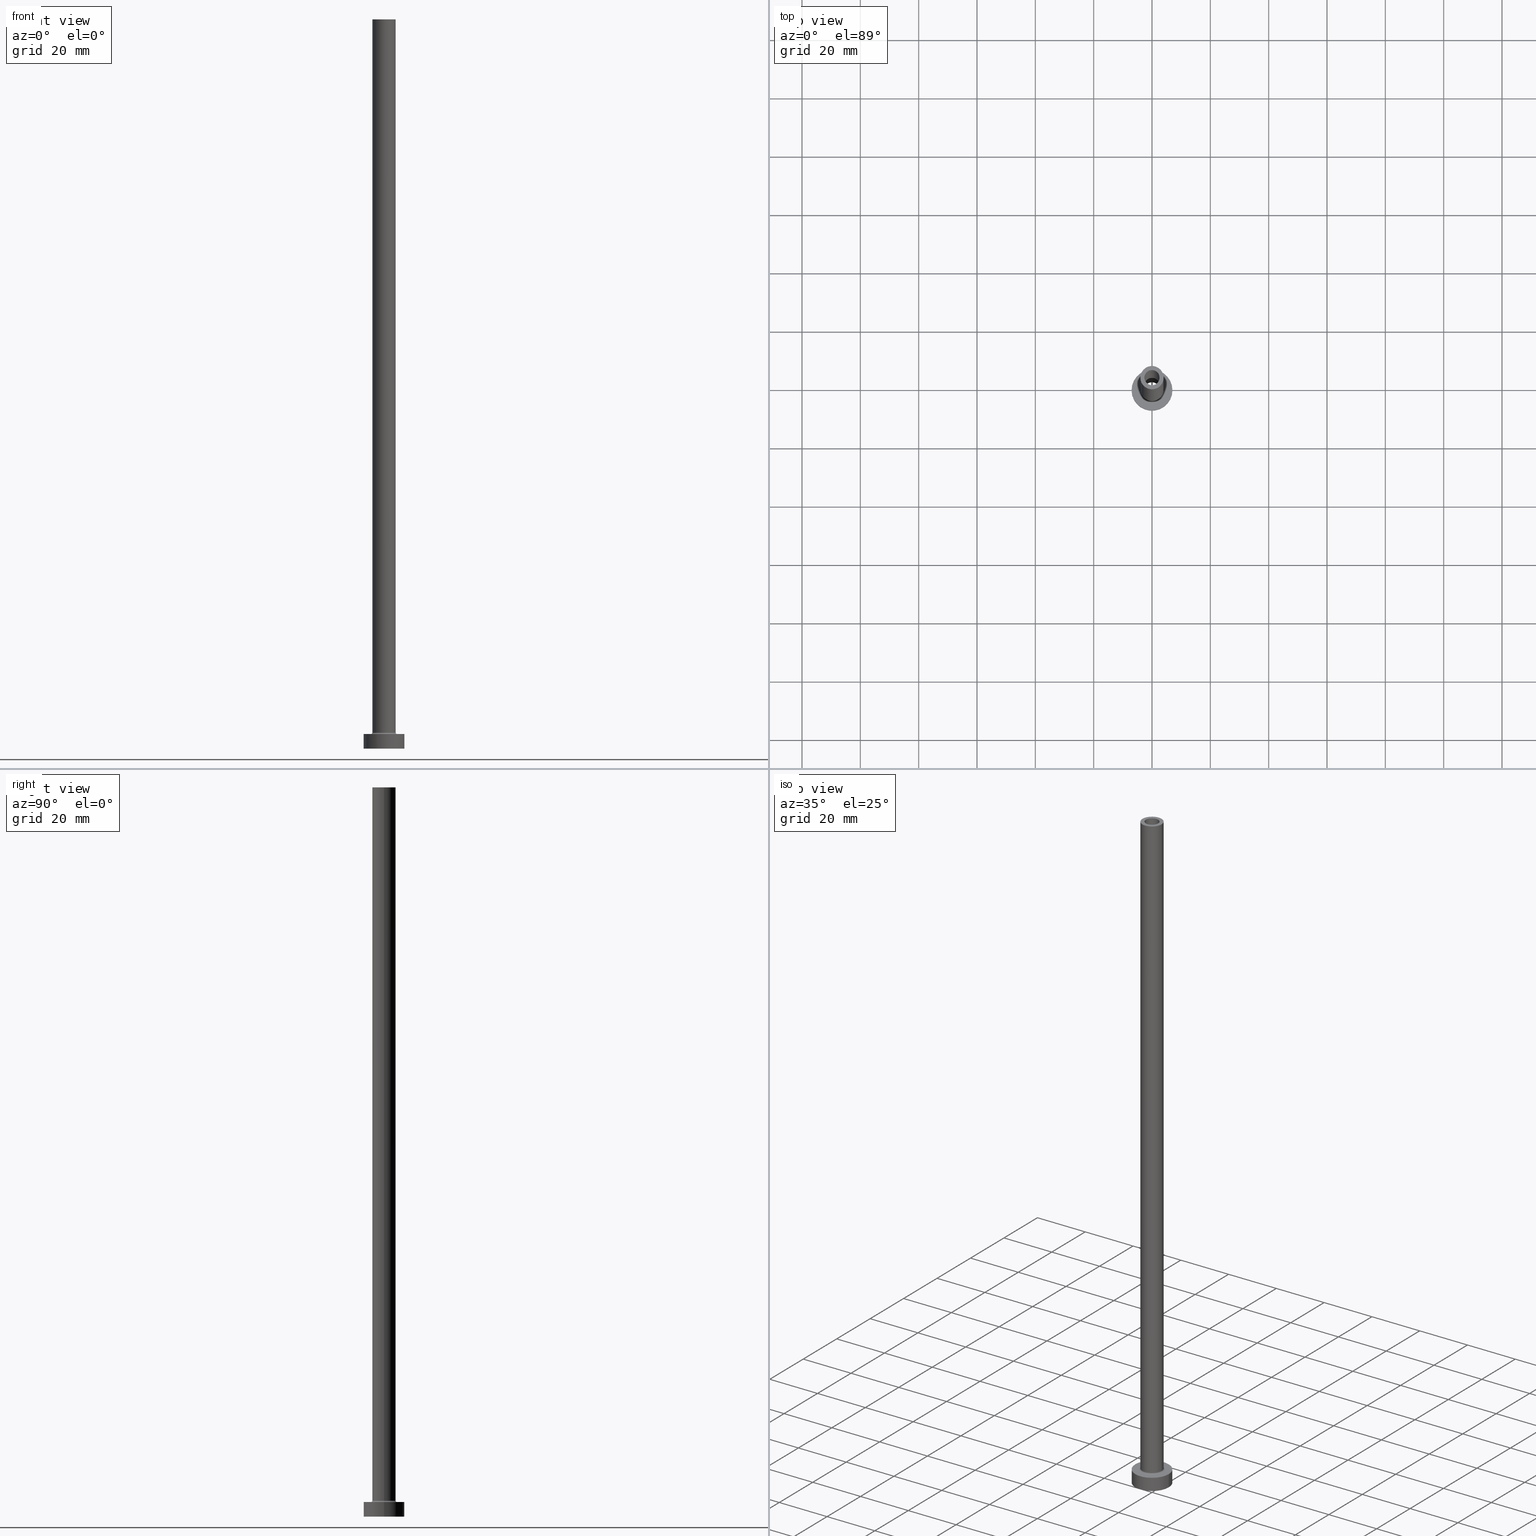
[diagram: canonical four-view strip — front | top / right | iso, engineering-drawing reading convention]
A machine part, canonical four-view strip (front | top / right | iso — engineering-drawing reading convention). The complete STEP part file that produces these views, byte-faithful:
ISO-10303-21;
HEADER;
FILE_DESCRIPTION (( 'STEP AP203' ),
    '1' );
FILE_NAME ('cbac.STEP',
    '2023-02-13T16:30:10',
    ( '' ),
    ( '' ),
    'SwSTEP 2.0',
    'SolidWorks 2019',
    '' );
FILE_SCHEMA (( 'CONFIG_CONTROL_DESIGN' ));
ENDSEC;

DATA;
#1 = VERTEX_POINT ( 'NONE', #78 ) ;
#2 = ORIENTED_EDGE ( 'NONE', *, *, #99, .F. ) ;
#3 = DIRECTION ( 'NONE',  ( -1.000000000000000000, 1.224646799147351482E-16, 0.000000000000000000 ) ) ;
#4 = DIRECTION ( 'NONE',  ( 1.000000000000000000, 0.000000000000000000, -0.000000000000000000 ) ) ;
#5 = DIRECTION ( 'NONE',  ( -1.000000000000000000, 0.000000000000000000, 0.000000000000000000 ) ) ;
#6 = VECTOR ( 'NONE', #360, 1000.000000000000000 ) ;
#7 = AXIS2_PLACEMENT_3D ( 'NONE', #383, #236, #449 ) ;
#8 = DIRECTION ( 'NONE',  ( 1.000000000000000000, 0.000000000000000000, 0.000000000000000000 ) ) ;
#9 = DIRECTION ( 'NONE',  ( -0.000000000000000000, -0.000000000000000000, -1.000000000000000000 ) ) ;
#10 = CARTESIAN_POINT ( 'NONE',  ( 7.000000000000000000, 8.572527594031473190E-16, 5.000000000000000000 ) ) ;
#11 = ADVANCED_FACE ( 'NONE', ( #355 ), #41, .T. ) ;
#12 = DIRECTION ( 'NONE',  ( -0.000000000000000000, -0.000000000000000000, -1.000000000000000000 ) ) ;
#13 = AXIS2_PLACEMENT_3D ( 'NONE', #115, #320, #5 ) ;
#14 = CARTESIAN_POINT ( 'NONE',  ( 4.000000000000000000, 4.898587196589412829E-16, 5.500000000000005329 ) ) ;
#15 = CARTESIAN_POINT ( 'NONE',  ( 0.000000000000000000, 0.000000000000000000, 250.0000000000000000 ) ) ;
#16 = CIRCLE ( 'NONE', #247, 4.500000000000000888 ) ;
#17 = DIRECTION ( 'NONE',  ( -1.000000000000000000, 0.000000000000000000, 0.000000000000000000 ) ) ;
#18 = FACE_OUTER_BOUND ( 'NONE', #430, .T. ) ;
#19 = COORDINATED_UNIVERSAL_TIME_OFFSET ( 1, 0, .AHEAD. ) ;
#20 = DIRECTION ( 'NONE',  ( 1.000000000000000000, 0.000000000000000000, 0.000000000000000000 ) ) ;
#21 = ORIENTED_EDGE ( 'NONE', *, *, #67, .F. ) ;
#22 = APPROVAL_ROLE ( '' ) ;
#23 = FACE_BOUND ( 'NONE', #277, .T. ) ;
#24 = ORIENTED_EDGE ( 'NONE', *, *, #354, .F. ) ;
#25 = VECTOR ( 'NONE', #9, 1000.000000000000000 ) ;
#26 = SHAPE_DEFINITION_REPRESENTATION ( #336, #378 ) ;
#27 = LOCAL_TIME ( 17, 30, 10.00000000000000000, #333 ) ;
#28 = DIRECTION ( 'NONE',  ( 1.000000000000000000, 0.000000000000000000, -0.000000000000000000 ) ) ;
#29 = ORIENTED_EDGE ( 'NONE', *, *, #134, .F. ) ;
#30 = SECURITY_CLASSIFICATION_LEVEL ( 'unclassified' ) ;
#31 = EDGE_CURVE ( 'NONE', #72, #339, #196, .T. ) ;
#32 = ORIENTED_EDGE ( 'NONE', *, *, #316, .F. ) ;
#33 = AXIS2_PLACEMENT_3D ( 'NONE', #437, #82, #3 ) ;
#34 = MECHANICAL_CONTEXT ( 'NONE', #344, 'mechanical' ) ;
#35 = CIRCLE ( 'NONE', #321, 4.500000000000000888 ) ;
#36 = ORIENTED_EDGE ( 'NONE', *, *, #193, .T. ) ;
#37 = EDGE_CURVE ( 'NONE', #128, #335, #90, .T. ) ;
#38 = EDGE_LOOP ( 'NONE', ( #102, #390, #167, #192 ) ) ;
#39 = ORIENTED_EDGE ( 'NONE', *, *, #316, .T. ) ;
#40 = AXIS2_PLACEMENT_3D ( 'NONE', #326, #436, #156 ) ;
#41 = CYLINDRICAL_SURFACE ( 'NONE', #459, 7.000000000000000000 ) ;
#42 = FACE_OUTER_BOUND ( 'NONE', #141, .T. ) ;
#43 = CC_DESIGN_DATE_AND_TIME_ASSIGNMENT ( #345, #337, ( #284 ) ) ;
#44 = CARTESIAN_POINT ( 'NONE',  ( 4.000000000000000000, 4.898587196589412829E-16, 250.0000000000000000 ) ) ;
#45 = CARTESIAN_POINT ( 'NONE',  ( 0.000000000000000000, 0.000000000000000000, 250.0000000000000000 ) ) ;
#46 = CARTESIAN_POINT ( 'NONE',  ( 4.500000000000000888, 0.000000000000000000, 5.000000000000002665 ) ) ;
#47 = AXIS2_PLACEMENT_3D ( 'NONE', #191, #163, #452 ) ;
#48 = ADVANCED_FACE ( 'NONE', ( #42 ), #327, .F. ) ;
#49 = DIRECTION ( 'NONE',  ( 0.000000000000000000, 0.000000000000000000, 1.000000000000000000 ) ) ;
#50 = DIRECTION ( 'NONE',  ( 1.000000000000000000, 0.000000000000000000, 0.000000000000000000 ) ) ;
#51 = CARTESIAN_POINT ( 'NONE',  ( 0.000000000000000000, 0.000000000000000000, 250.0000000000000000 ) ) ;
#52 = LINE ( 'NONE', #123, #25 ) ;
#53 = PLANE ( 'NONE',  #155 ) ;
#54 = CARTESIAN_POINT ( 'NONE',  ( 7.000000000000000000, 8.572527594031473190E-16, 0.000000000000000000 ) ) ;
#55 = APPROVAL ( #190, 'NEUR�EN�' ) ;
#56 = CIRCLE ( 'NONE', #271, 2.750000000000000000 ) ;
#57 = DIRECTION ( 'NONE',  ( 0.000000000000000000, 0.000000000000000000, -1.000000000000000000 ) ) ;
#58 = DIRECTION ( 'NONE',  ( 0.000000000000000000, 0.000000000000000000, 1.000000000000000000 ) ) ;
#59 = VERTEX_POINT ( 'NONE', #146 ) ;
#60 = PERSON_AND_ORGANIZATION ( #349, #442 ) ;
#61 = DIRECTION ( 'NONE',  ( -0.000000000000000000, -0.000000000000000000, -1.000000000000000000 ) ) ;
#62 = EDGE_LOOP ( 'NONE', ( #75, #238, #39, #204 ) ) ;
#63 = AXIS2_PLACEMENT_3D ( 'NONE', #325, #153, #220 ) ;
#64 = DATE_AND_TIME ( #375, #88 ) ;
#65 = DIRECTION ( 'NONE',  ( 1.000000000000000000, 0.000000000000000000, 0.000000000000000000 ) ) ;
#66 = DATE_AND_TIME ( #194, #189 ) ;
#67 = EDGE_CURVE ( 'NONE', #1, #110, #112, .T. ) ;
#68 = CC_DESIGN_APPROVAL ( #322, ( #369 ) ) ;
#69 = ORIENTED_EDGE ( 'NONE', *, *, #176, .T. ) ;
#70 = CALENDAR_DATE ( 2023, 13, 2 ) ;
#71 = EDGE_LOOP ( 'NONE', ( #106, #174 ) ) ;
#72 = VERTEX_POINT ( 'NONE', #408 ) ;
#73 = CIRCLE ( 'NONE', #395, 4.000000000000000000 ) ;
#74 = CIRCLE ( 'NONE', #145, 2.600000000000000089 ) ;
#75 = ORIENTED_EDGE ( 'NONE', *, *, #37, .F. ) ;
#76 = UNCERTAINTY_MEASURE_WITH_UNIT (LENGTH_MEASURE( 1.000000000000000082E-05 ), #328, 'distance_accuracy_value', 'NONE');
#77 = ORIENTED_EDGE ( 'NONE', *, *, #143, .T. ) ;
#78 = CARTESIAN_POINT ( 'NONE',  ( 2.600000000000000089, 3.184081677783117698E-16, 250.0000000000000000 ) ) ;
#79 = EDGE_CURVE ( 'NONE', #335, #161, #312, .T. ) ;
#80 = TOROIDAL_SURFACE ( 'NONE', #47, 4.500000000000000888, 0.5000000000000000000 ) ;
#81 = EDGE_LOOP ( 'NONE', ( #209, #138 ) ) ;
#82 = DIRECTION ( 'NONE',  ( 1.224646799147353207E-16, 1.000000000000000000, -0.000000000000000000 ) ) ;
#83 = CARTESIAN_POINT ( 'NONE',  ( 2.750000000000000000, 3.367778697655221012E-16, 205.0000000000000284 ) ) ;
#84 = CARTESIAN_POINT ( 'NONE',  ( 0.000000000000000000, 0.000000000000000000, 0.000000000000000000 ) ) ;
#85 = EDGE_CURVE ( 'NONE', #128, #139, #98, .T. ) ;
#86 = CYLINDRICAL_SURFACE ( 'NONE', #403, 4.000000000000000000 ) ;
#87 = DIRECTION ( 'NONE',  ( -1.000000000000000000, 0.000000000000000000, 0.000000000000000000 ) ) ;
#88 = LOCAL_TIME ( 17, 30, 10.00000000000000000, #19 ) ;
#89 = CYLINDRICAL_SURFACE ( 'NONE', #235, 2.600000000000000089 ) ;
#90 = LINE ( 'NONE', #44, #409 ) ;
#91 = DIRECTION ( 'NONE',  ( 1.000000000000000000, 0.000000000000000000, 0.000000000000000000 ) ) ;
#92 = CARTESIAN_POINT ( 'NONE',  ( 0.000000000000000000, 0.000000000000000000, 5.500000000000005329 ) ) ;
#93 = LOCAL_TIME ( 17, 30, 10.00000000000000000, #305 ) ;
#94 = PERSON_AND_ORGANIZATION ( #349, #442 ) ;
#95 = DIRECTION ( 'NONE',  ( -0.000000000000000000, -0.000000000000000000, -1.000000000000000000 ) ) ;
#96 = PERSON_AND_ORGANIZATION ( #349, #442 ) ;
#97 = FACE_OUTER_BOUND ( 'NONE', #71, .T. ) ;
#98 = CIRCLE ( 'NONE', #353, 4.000000000000000000 ) ;
#99 = EDGE_CURVE ( 'NONE', #394, #233, #291, .T. ) ;
#100 = PERSON_AND_ORGANIZATION_ROLE ( 'creator' ) ;
#101 = DIRECTION ( 'NONE',  ( 1.000000000000000000, 0.000000000000000000, 0.000000000000000000 ) ) ;
#102 = ORIENTED_EDGE ( 'NONE', *, *, #168, .F. ) ;
#103 = PERSON_AND_ORGANIZATION_ROLE ( 'creator' ) ;
#104 = APPROVAL_PERSON_ORGANIZATION ( #129, #55, #22 ) ;
#105 = EDGE_CURVE ( 'NONE', #453, #59, #269, .T. ) ;
#106 = ORIENTED_EDGE ( 'NONE', *, *, #237, .T. ) ;
#107 = ORIENTED_EDGE ( 'NONE', *, *, #358, .T. ) ;
#108 = APPROVAL_PERSON_ORGANIZATION ( #417, #322, #451 ) ;
#109 = EDGE_LOOP ( 'NONE', ( #356, #205, #131, #203 ) ) ;
#110 = VERTEX_POINT ( 'NONE', #148 ) ;
#111 = ADVANCED_FACE ( 'NONE', ( #182, #121 ), #185, .F. ) ;
#112 = CIRCLE ( 'NONE', #63, 2.600000000000000089 ) ;
#113 = ORIENTED_EDGE ( 'NONE', *, *, #255, .T. ) ;
#114 = CIRCLE ( 'NONE', #314, 4.000000000000000000 ) ;
#115 = CARTESIAN_POINT ( 'NONE',  ( 0.000000000000000000, 0.000000000000000000, 250.0000000000000000 ) ) ;
#116 = CC_DESIGN_APPROVAL ( #55, ( #456 ) ) ;
#117 = LINE ( 'NONE', #400, #289 ) ;
#118 = ADVANCED_FACE ( 'NONE', ( #280 ), #318, .F. ) ;
#119 = DIRECTION ( 'NONE',  ( 1.000000000000000000, 0.000000000000000000, 0.000000000000000000 ) ) ;
#120 = DIRECTION ( 'NONE',  ( 0.000000000000000000, 0.000000000000000000, 1.000000000000000000 ) ) ;
#121 = FACE_OUTER_BOUND ( 'NONE', #348, .T. ) ;
#122 = DIRECTION ( 'NONE',  ( 0.000000000000000000, 0.000000000000000000, -1.000000000000000000 ) ) ;
#123 = CARTESIAN_POINT ( 'NONE',  ( 7.000000000000000000, 8.572527594031473190E-16, 5.000000000000000000 ) ) ;
#124 = FACE_OUTER_BOUND ( 'NONE', #350, .T. ) ;
#125 = CARTESIAN_POINT ( 'NONE',  ( 0.000000000000000000, 0.000000000000000000, 5.000000000000000000 ) ) ;
#126 = ADVANCED_FACE ( 'NONE', ( #222 ), #432, .F. ) ;
#127 = CARTESIAN_POINT ( 'NONE',  ( 2.750000000000000000, 3.367778697655221012E-16, 0.000000000000000000 ) ) ;
#128 = VERTEX_POINT ( 'NONE', #397 ) ;
#129 = PERSON_AND_ORGANIZATION ( #349, #442 ) ;
#130 = CARTESIAN_POINT ( 'NONE',  ( -2.750000000000000000, 0.000000000000000000, 0.000000000000000000 ) ) ;
#131 = ORIENTED_EDGE ( 'NONE', *, *, #206, .F. ) ;
#132 = LOCAL_TIME ( 17, 30, 10.00000000000000000, #304 ) ;
#133 = DIRECTION ( 'NONE',  ( 1.000000000000000000, 0.000000000000000000, -0.000000000000000000 ) ) ;
#134 = EDGE_CURVE ( 'NONE', #339, #161, #16, .T. ) ;
#135 = CARTESIAN_POINT ( 'NONE',  ( 0.000000000000000000, 0.000000000000000000, 5.000000000000000000 ) ) ;
#136 = EDGE_LOOP ( 'NONE', ( #346, #278, #211, #24 ) ) ;
#137 = DIRECTION ( 'NONE',  ( -0.000000000000000000, -0.000000000000000000, -1.000000000000000000 ) ) ;
#138 = ORIENTED_EDGE ( 'NONE', *, *, #134, .T. ) ;
#139 = VERTEX_POINT ( 'NONE', #285 ) ;
#140 = VERTEX_POINT ( 'NONE', #259 ) ;
#141 = EDGE_LOOP ( 'NONE', ( #373, #275, #423, #428 ) ) ;
#142 = DIRECTION ( 'NONE',  ( -0.000000000000000000, -0.000000000000000000, -1.000000000000000000 ) ) ;
#143 = EDGE_CURVE ( 'NONE', #273, #229, #214, .T. ) ;
#144 = DIRECTION ( 'NONE',  ( 1.000000000000000000, 0.000000000000000000, 0.000000000000000000 ) ) ;
#145 = AXIS2_PLACEMENT_3D ( 'NONE', #251, #288, #398 ) ;
#146 = CARTESIAN_POINT ( 'NONE',  ( -7.000000000000000000, 0.000000000000000000, 5.000000000000000000 ) ) ;
#147 = CYLINDRICAL_SURFACE ( 'NONE', #388, 2.750000000000000000 ) ;
#148 = CARTESIAN_POINT ( 'NONE',  ( -2.600000000000000089, 0.000000000000000000, 250.0000000000000000 ) ) ;
#149 = FACE_OUTER_BOUND ( 'NONE', #136, .T. ) ;
#150 = VECTOR ( 'NONE', #357, 1000.000000000000000 ) ;
#151 = CARTESIAN_POINT ( 'NONE',  ( 4.500000000000000888, 0.000000000000000000, 5.500000000000005329 ) ) ;
#152 = FACE_OUTER_BOUND ( 'NONE', #382, .T. ) ;
#153 = DIRECTION ( 'NONE',  ( 0.000000000000000000, 0.000000000000000000, 1.000000000000000000 ) ) ;
#154 = EDGE_CURVE ( 'NONE', #59, #384, #287, .T. ) ;
#155 = AXIS2_PLACEMENT_3D ( 'NONE', #364, #120, #4 ) ;
#156 = DIRECTION ( 'NONE',  ( 1.000000000000000000, 0.000000000000000000, 0.000000000000000000 ) ) ;
#157 = CARTESIAN_POINT ( 'NONE',  ( -4.000000000000000000, 0.000000000000000000, 250.0000000000000000 ) ) ;
#158 = DIRECTION ( 'NONE',  ( 0.000000000000000000, 0.000000000000000000, 1.000000000000000000 ) ) ;
#159 = ORIENTED_EDGE ( 'NONE', *, *, #303, .T. ) ;
#160 = FACE_OUTER_BOUND ( 'NONE', #426, .T. ) ;
#161 = VERTEX_POINT ( 'NONE', #46 ) ;
#162 = VECTOR ( 'NONE', #439, 1000.000000000000000 ) ;
#163 = DIRECTION ( 'NONE',  ( 0.000000000000000000, 0.000000000000000000, 1.000000000000000000 ) ) ;
#164 = PERSON_AND_ORGANIZATION_ROLE ( 'classification_officer' ) ;
#165 = ORIENTED_EDGE ( 'NONE', *, *, #391, .F. ) ;
#166 = APPROVAL_DATE_TIME ( #202, #322 ) ;
#167 = ORIENTED_EDGE ( 'NONE', *, *, #154, .T. ) ;
#168 = EDGE_CURVE ( 'NONE', #453, #306, #52, .T. ) ;
#169 = VECTOR ( 'NONE', #215, 1000.000000000000000 ) ;
#170 =( GEOMETRIC_REPRESENTATION_CONTEXT ( 3 ) GLOBAL_UNCERTAINTY_ASSIGNED_CONTEXT ( ( #76 ) ) GLOBAL_UNIT_ASSIGNED_CONTEXT ( ( #328, #186, #410 ) ) REPRESENTATION_CONTEXT ( 'NONE', 'WORKASPACE' ) );
#171 = ORIENTED_EDGE ( 'NONE', *, *, #341, .T. ) ;
#172 = ORIENTED_EDGE ( 'NONE', *, *, #105, .T. ) ;
#173 = EDGE_CURVE ( 'NONE', #394, #273, #307, .T. ) ;
#174 = ORIENTED_EDGE ( 'NONE', *, *, #85, .T. ) ;
#175 = CARTESIAN_POINT ( 'NONE',  ( 0.000000000000000000, 0.000000000000000000, 5.000000000000000000 ) ) ;
#176 = EDGE_CURVE ( 'NONE', #229, #233, #56, .T. ) ;
#177 = DIRECTION ( 'NONE',  ( 0.000000000000000000, 0.000000000000000000, 1.000000000000000000 ) ) ;
#178 = LINE ( 'NONE', #438, #290 ) ;
#179 = CIRCLE ( 'NONE', #40, 7.000000000000000000 ) ;
#180 = DIRECTION ( 'NONE',  ( 1.000000000000000000, 0.000000000000000000, 0.000000000000000000 ) ) ;
#181 = DIRECTION ( 'NONE',  ( 0.000000000000000000, 0.000000000000000000, -1.000000000000000000 ) ) ;
#182 = FACE_BOUND ( 'NONE', #241, .T. ) ;
#183 = CARTESIAN_POINT ( 'NONE',  ( 2.600000000000000089, 3.184081677783117698E-16, 205.0000000000000284 ) ) ;
#184 = EDGE_CURVE ( 'NONE', #72, #335, #73, .T. ) ;
#185 = PLANE ( 'NONE',  #261 ) ;
#186 =( NAMED_UNIT ( * ) PLANE_ANGLE_UNIT ( ) SI_UNIT ( $, .RADIAN. ) );
#187 = LINE ( 'NONE', #157, #169 ) ;
#188 = AXIS2_PLACEMENT_3D ( 'NONE', #302, #372, #101 ) ;
#189 = LOCAL_TIME ( 17, 30, 10.00000000000000000, #385 ) ;
#190 = APPROVAL_STATUS ( 'not_yet_approved' ) ;
#191 = CARTESIAN_POINT ( 'NONE',  ( 0.000000000000000000, 0.000000000000000000, 5.500000000000005329 ) ) ;
#192 = ORIENTED_EDGE ( 'NONE', *, *, #440, .T. ) ;
#193 = EDGE_CURVE ( 'NONE', #387, #140, #330, .T. ) ;
#194 = CALENDAR_DATE ( 2023, 13, 2 ) ;
#195 = CARTESIAN_POINT ( 'NONE',  ( 0.000000000000000000, 0.000000000000000000, 5.000000000000000000 ) ) ;
#196 = CIRCLE ( 'NONE', #33, 0.5000000000000004441 ) ;
#197 = DATE_TIME_ROLE ( 'classification_date' ) ;
#198 = FACE_OUTER_BOUND ( 'NONE', #244, .T. ) ;
#199 = CIRCLE ( 'NONE', #234, 2.750000000000000000 ) ;
#200 = APPROVAL_DATE_TIME ( #420, #55 ) ;
#201 = ORIENTED_EDGE ( 'NONE', *, *, #173, .F. ) ;
#202 = DATE_AND_TIME ( #70, #132 ) ;
#203 = ORIENTED_EDGE ( 'NONE', *, *, #79, .F. ) ;
#204 = ORIENTED_EDGE ( 'NONE', *, *, #184, .T. ) ;
#205 = ORIENTED_EDGE ( 'NONE', *, *, #31, .T. ) ;
#206 = EDGE_CURVE ( 'NONE', #161, #339, #35, .T. ) ;
#207 = ORIENTED_EDGE ( 'NONE', *, *, #440, .F. ) ;
#208 = PRODUCT ( 'cbac', 'cbac', '', ( #34 ) ) ;
#209 = ORIENTED_EDGE ( 'NONE', *, *, #206, .T. ) ;
#210 = APPROVAL ( #270, 'NEUR�EN�' ) ;
#211 = ORIENTED_EDGE ( 'NONE', *, *, #406, .F. ) ;
#212 = DIRECTION ( 'NONE',  ( 0.000000000000000000, -1.000000000000000000, 0.000000000000000000 ) ) ;
#213 = DIRECTION ( 'NONE',  ( -1.000000000000000000, 0.000000000000000000, 0.000000000000000000 ) ) ;
#214 = LINE ( 'NONE', #401, #6 ) ;
#215 = DIRECTION ( 'NONE',  ( -0.000000000000000000, -0.000000000000000000, -1.000000000000000000 ) ) ;
#216 = AXIS2_PLACEMENT_3D ( 'NONE', #262, #299, #133 ) ;
#217 = DIRECTION ( 'NONE',  ( 0.000000000000000000, 0.000000000000000000, -1.000000000000000000 ) ) ;
#218 = APPLICATION_CONTEXT ( 'configuration controlled 3d designs of mechanical parts and assemblies' ) ;
#219 = ADVANCED_FACE ( 'NONE', ( #18 ), #228, .T. ) ;
#220 = DIRECTION ( 'NONE',  ( 1.000000000000000000, 0.000000000000000000, 0.000000000000000000 ) ) ;
#221 = FACE_OUTER_BOUND ( 'NONE', #461, .T. ) ;
#222 = FACE_OUTER_BOUND ( 'NONE', #240, .T. ) ;
#223 = DIRECTION ( 'NONE',  ( -1.000000000000000000, 0.000000000000000000, 0.000000000000000000 ) ) ;
#224 = CARTESIAN_POINT ( 'NONE',  ( 0.000000000000000000, 0.000000000000000000, 250.0000000000000000 ) ) ;
#225 = CIRCLE ( 'NONE', #243, 2.750000000000000000 ) ;
#226 = ORIENTED_EDGE ( 'NONE', *, *, #168, .T. ) ;
#227 = PERSON_AND_ORGANIZATION ( #349, #442 ) ;
#228 = CYLINDRICAL_SURFACE ( 'NONE', #342, 7.000000000000000000 ) ;
#229 = VERTEX_POINT ( 'NONE', #130 ) ;
#230 = PERSON_AND_ORGANIZATION ( #349, #442 ) ;
#231 = DIRECTION ( 'NONE',  ( 0.000000000000000000, 0.000000000000000000, 1.000000000000000000 ) ) ;
#232 = DIRECTION ( 'NONE',  ( 1.000000000000000000, 0.000000000000000000, 0.000000000000000000 ) ) ;
#233 = VERTEX_POINT ( 'NONE', #127 ) ;
#234 = AXIS2_PLACEMENT_3D ( 'NONE', #268, #380, #366 ) ;
#235 = AXIS2_PLACEMENT_3D ( 'NONE', #51, #407, #17 ) ;
#236 = DIRECTION ( 'NONE',  ( 0.000000000000000000, 0.000000000000000000, 1.000000000000000000 ) ) ;
#237 = EDGE_CURVE ( 'NONE', #139, #128, #448, .T. ) ;
#238 = ORIENTED_EDGE ( 'NONE', *, *, #237, .F. ) ;
#239 = PERSON_AND_ORGANIZATION_ROLE ( 'design_owner' ) ;
#240 = EDGE_LOOP ( 'NONE', ( #159, #297, #107, #424 ) ) ;
#241 = EDGE_LOOP ( 'NONE', ( #246, #419 ) ) ;
#242 = ADVANCED_FACE ( 'NONE', ( #23, #160 ), #450, .F. ) ;
#243 = AXIS2_PLACEMENT_3D ( 'NONE', #260, #256, #319 ) ;
#244 = EDGE_LOOP ( 'NONE', ( #313, #311, #352, #29 ) ) ;
#245 = ORIENTED_EDGE ( 'NONE', *, *, #406, .T. ) ;
#246 = ORIENTED_EDGE ( 'NONE', *, *, #176, .F. ) ;
#247 = AXIS2_PLACEMENT_3D ( 'NONE', #329, #12, #119 ) ;
#248 = ADVANCED_FACE ( 'NONE', ( #445, #97 ), #331, .T. ) ;
#249 = CC_DESIGN_SECURITY_CLASSIFICATION ( #369, ( #456 ) ) ;
#250 = CARTESIAN_POINT ( 'NONE',  ( 2.750000000000000000, 3.367778697655221012E-16, 212.7781745930520287 ) ) ;
#251 = CARTESIAN_POINT ( 'NONE',  ( 0.000000000000000000, 0.000000000000000000, 250.0000000000000000 ) ) ;
#252 = DIRECTION ( 'NONE',  ( 0.000000000000000000, 0.000000000000000000, 1.000000000000000000 ) ) ;
#253 = DIRECTION ( 'NONE',  ( -1.000000000000000000, 0.000000000000000000, 0.000000000000000000 ) ) ;
#254 = CARTESIAN_POINT ( 'NONE',  ( 0.000000000000000000, 0.000000000000000000, 212.7781745930520287 ) ) ;
#255 = EDGE_CURVE ( 'NONE', #335, #72, #114, .T. ) ;
#256 = DIRECTION ( 'NONE',  ( -0.000000000000000000, -0.000000000000000000, -1.000000000000000000 ) ) ;
#257 = CARTESIAN_POINT ( 'NONE',  ( 0.000000000000000000, 0.000000000000000000, 205.0000000000000284 ) ) ;
#258 = DIRECTION ( 'NONE',  ( 0.000000000000000000, 0.000000000000000000, 1.000000000000000000 ) ) ;
#259 = CARTESIAN_POINT ( 'NONE',  ( -2.600000000000000089, 0.000000000000000000, 205.0000000000000284 ) ) ;
#260 = CARTESIAN_POINT ( 'NONE',  ( 0.000000000000000000, 0.000000000000000000, 0.000000000000000000 ) ) ;
#261 = AXIS2_PLACEMENT_3D ( 'NONE', #84, #252, #399 ) ;
#262 = CARTESIAN_POINT ( 'NONE',  ( 0.000000000000000000, 0.000000000000000000, 205.0000000000000284 ) ) ;
#263 = ORIENTED_EDGE ( 'NONE', *, *, #341, .F. ) ;
#264 = DIRECTION ( 'NONE',  ( -1.000000000000000000, 0.000000000000000000, 0.000000000000000000 ) ) ;
#265 = CC_DESIGN_APPROVAL ( #210, ( #284 ) ) ;
#266 = PERSON_AND_ORGANIZATION ( #349, #442 ) ;
#267 = DIRECTION ( 'NONE',  ( 1.000000000000000000, 0.000000000000000000, 0.000000000000000000 ) ) ;
#268 = CARTESIAN_POINT ( 'NONE',  ( 0.000000000000000000, 0.000000000000000000, 205.0000000000000284 ) ) ;
#269 = CIRCLE ( 'NONE', #429, 7.000000000000000000 ) ;
#270 = APPROVAL_STATUS ( 'not_yet_approved' ) ;
#271 = AXIS2_PLACEMENT_3D ( 'NONE', #334, #61, #296 ) ;
#272 = CIRCLE ( 'NONE', #308, 2.600000000000000089 ) ;
#273 = VERTEX_POINT ( 'NONE', #411 ) ;
#274 = CC_DESIGN_PERSON_AND_ORGANIZATION_ASSIGNMENT ( #96, #164, ( #369 ) ) ;
#275 = ORIENTED_EDGE ( 'NONE', *, *, #67, .T. ) ;
#276 = ORIENTED_EDGE ( 'NONE', *, *, #85, .F. ) ;
#277 = EDGE_LOOP ( 'NONE', ( #245, #36 ) ) ;
#278 = ORIENTED_EDGE ( 'NONE', *, *, #427, .T. ) ;
#279 = ADVANCED_FACE ( 'NONE', ( #198 ), #80, .F. ) ;
#280 = FACE_OUTER_BOUND ( 'NONE', #109, .T. ) ;
#281 = DIRECTION ( 'NONE',  ( -0.000000000000000000, -0.000000000000000000, -1.000000000000000000 ) ) ;
#282 = DIRECTION ( 'NONE',  ( 0.000000000000000000, 0.000000000000000000, -1.000000000000000000 ) ) ;
#283 = CARTESIAN_POINT ( 'NONE',  ( 0.000000000000000000, 0.000000000000000000, 212.7781745930520287 ) ) ;
#284 = PRODUCT_DEFINITION ( 'NEZN�M�', '', #456, #351 ) ;
#285 = CARTESIAN_POINT ( 'NONE',  ( -4.000000000000000000, 0.000000000000000000, 250.0000000000000000 ) ) ;
#286 = FACE_OUTER_BOUND ( 'NONE', #62, .T. ) ;
#287 = LINE ( 'NONE', #363, #162 ) ;
#288 = DIRECTION ( 'NONE',  ( 0.000000000000000000, 0.000000000000000000, 1.000000000000000000 ) ) ;
#289 = VECTOR ( 'NONE', #181, 1000.000000000000000 ) ;
#290 = VECTOR ( 'NONE', #122, 1000.000000000000000 ) ;
#291 = LINE ( 'NONE', #250, #150 ) ;
#292 = EDGE_CURVE ( 'NONE', #59, #453, #455, .T. ) ;
#293 = CARTESIAN_POINT ( 'NONE',  ( 0.000000000000000000, 0.000000000000000000, 205.0000000000000284 ) ) ;
#294 = CARTESIAN_POINT ( 'NONE',  ( 0.000000000000000000, 0.000000000000000000, 250.0000000000000000 ) ) ;
#295 = APPROVAL_ROLE ( '' ) ;
#296 = DIRECTION ( 'NONE',  ( 1.000000000000000000, 0.000000000000000000, 0.000000000000000000 ) ) ;
#297 = ORIENTED_EDGE ( 'NONE', *, *, #99, .T. ) ;
#298 = APPROVAL_DATE_TIME ( #66, #210 ) ;
#299 = DIRECTION ( 'NONE',  ( 0.000000000000000000, 0.000000000000000000, 1.000000000000000000 ) ) ;
#300 = ORIENTED_EDGE ( 'NONE', *, *, #154, .F. ) ;
#301 = APPLICATION_PROTOCOL_DEFINITION ( 'international standard', 'config_control_design', 1994, #344 ) ;
#302 = CARTESIAN_POINT ( 'NONE',  ( 0.000000000000000000, 0.000000000000000000, 205.0000000000000284 ) ) ;
#303 = EDGE_CURVE ( 'NONE', #273, #394, #199, .T. ) ;
#304 = COORDINATED_UNIVERSAL_TIME_OFFSET ( 1, 0, .AHEAD. ) ;
#305 = COORDINATED_UNIVERSAL_TIME_OFFSET ( 1, 0, .AHEAD. ) ;
#306 = VERTEX_POINT ( 'NONE', #54 ) ;
#307 = CIRCLE ( 'NONE', #425, 2.750000000000000000 ) ;
#308 = AXIS2_PLACEMENT_3D ( 'NONE', #293, #258, #144 ) ;
#309 = CC_DESIGN_PERSON_AND_ORGANIZATION_ASSIGNMENT ( #266, #415, ( #456 ) ) ;
#310 = EDGE_LOOP ( 'NONE', ( #165, #21 ) ) ;
#311 = ORIENTED_EDGE ( 'NONE', *, *, #255, .F. ) ;
#312 = CIRCLE ( 'NONE', #376, 0.5000000000000004441 ) ;
#313 = ORIENTED_EDGE ( 'NONE', *, *, #31, .F. ) ;
#314 = AXIS2_PLACEMENT_3D ( 'NONE', #377, #158, #65 ) ;
#315 = ORIENTED_EDGE ( 'NONE', *, *, #292, .T. ) ;
#316 = EDGE_CURVE ( 'NONE', #139, #72, #187, .T. ) ;
#317 = CARTESIAN_POINT ( 'NONE',  ( 0.000000000000000000, 0.000000000000000000, 5.500000000000005329 ) ) ;
#318 = TOROIDAL_SURFACE ( 'NONE', #386, 4.500000000000000888, 0.5000000000000000000 ) ;
#319 = DIRECTION ( 'NONE',  ( 1.000000000000000000, 0.000000000000000000, 0.000000000000000000 ) ) ;
#320 = DIRECTION ( 'NONE',  ( 0.000000000000000000, 0.000000000000000000, -1.000000000000000000 ) ) ;
#321 = AXIS2_PLACEMENT_3D ( 'NONE', #447, #95, #338 ) ;
#322 = APPROVAL ( #340, 'NEUR�EN�' ) ;
#323 = AXIS2_PLACEMENT_3D ( 'NONE', #359, #281, #213 ) ;
#324 = DIRECTION ( 'NONE',  ( -0.000000000000000000, -0.000000000000000000, -1.000000000000000000 ) ) ;
#325 = CARTESIAN_POINT ( 'NONE',  ( 0.000000000000000000, 0.000000000000000000, 250.0000000000000000 ) ) ;
#326 = CARTESIAN_POINT ( 'NONE',  ( 0.000000000000000000, 0.000000000000000000, 0.000000000000000000 ) ) ;
#327 = CYLINDRICAL_SURFACE ( 'NONE', #13, 2.600000000000000089 ) ;
#328 =( LENGTH_UNIT ( ) NAMED_UNIT ( * ) SI_UNIT ( .MILLI., .METRE. ) );
#329 = CARTESIAN_POINT ( 'NONE',  ( 0.000000000000000000, 0.000000000000000000, 5.000000000000000000 ) ) ;
#330 = CIRCLE ( 'NONE', #188, 2.600000000000000089 ) ;
#331 = PLANE ( 'NONE',  #402 ) ;
#332 = ADVANCED_FACE ( 'NONE', ( #152 ), #147, .F. ) ;
#333 = COORDINATED_UNIVERSAL_TIME_OFFSET ( 1, 0, .AHEAD. ) ;
#334 = CARTESIAN_POINT ( 'NONE',  ( 0.000000000000000000, 0.000000000000000000, 0.000000000000000000 ) ) ;
#335 = VERTEX_POINT ( 'NONE', #14 ) ;
#336 = PRODUCT_DEFINITION_SHAPE ( 'NONE', 'NONE',  #284 ) ;
#337 = DATE_TIME_ROLE ( 'creation_date' ) ;
#338 = DIRECTION ( 'NONE',  ( 1.000000000000000000, 0.000000000000000000, 0.000000000000000000 ) ) ;
#339 = VERTEX_POINT ( 'NONE', #367 ) ;
#340 = APPROVAL_STATUS ( 'not_yet_approved' ) ;
#341 = EDGE_CURVE ( 'NONE', #306, #384, #179, .T. ) ;
#342 = AXIS2_PLACEMENT_3D ( 'NONE', #195, #418, #264 ) ;
#343 = CIRCLE ( 'NONE', #381, 7.000000000000000000 ) ;
#344 = APPLICATION_CONTEXT ( 'configuration controlled 3d designs of mechanical parts and assemblies' ) ;
#345 = DATE_AND_TIME ( #412, #93 ) ;
#346 = ORIENTED_EDGE ( 'NONE', *, *, #391, .T. ) ;
#347 = PRODUCT_RELATED_PRODUCT_CATEGORY ( 'detail', '', ( #208 ) ) ;
#348 = EDGE_LOOP ( 'NONE', ( #207, #263 ) ) ;
#349 = PERSON ( 'NEUR�EN�', 'NEUR�EN�', 'NEUR�EN�', ('NEUR�EN�'), ('NEUR�EN�'), ('NEUR�EN�') ) ;
#350 = EDGE_LOOP ( 'NONE', ( #315, #172 ) ) ;
#351 = DESIGN_CONTEXT ( 'detailed design', #218, 'design' ) ;
#352 = ORIENTED_EDGE ( 'NONE', *, *, #79, .T. ) ;
#353 = AXIS2_PLACEMENT_3D ( 'NONE', #15, #362, #180 ) ;
#354 = EDGE_CURVE ( 'NONE', #110, #140, #117, .T. ) ;
#355 = FACE_OUTER_BOUND ( 'NONE', #38, .T. ) ;
#356 = ORIENTED_EDGE ( 'NONE', *, *, #184, .F. ) ;
#357 = DIRECTION ( 'NONE',  ( 0.000000000000000000, 0.000000000000000000, -1.000000000000000000 ) ) ;
#358 = EDGE_CURVE ( 'NONE', #233, #229, #225, .T. ) ;
#359 = CARTESIAN_POINT ( 'NONE',  ( 0.000000000000000000, 0.000000000000000000, 250.0000000000000000 ) ) ;
#360 = DIRECTION ( 'NONE',  ( 0.000000000000000000, 0.000000000000000000, -1.000000000000000000 ) ) ;
#361 = CARTESIAN_POINT ( 'NONE',  ( 0.000000000000000000, 0.000000000000000000, 0.000000000000000000 ) ) ;
#362 = DIRECTION ( 'NONE',  ( 0.000000000000000000, 0.000000000000000000, 1.000000000000000000 ) ) ;
#363 = CARTESIAN_POINT ( 'NONE',  ( -7.000000000000000000, 0.000000000000000000, 5.000000000000000000 ) ) ;
#364 = CARTESIAN_POINT ( 'NONE',  ( 0.000000000000000000, 0.000000000000000000, 5.000000000000000000 ) ) ;
#365 = CC_DESIGN_PERSON_AND_ORGANIZATION_ASSIGNMENT ( #60, #103, ( #284 ) ) ;
#366 = DIRECTION ( 'NONE',  ( 1.000000000000000000, 0.000000000000000000, 0.000000000000000000 ) ) ;
#367 = CARTESIAN_POINT ( 'NONE',  ( -4.500000000000000888, 5.510910596163088569E-16, 5.000000000000002665 ) ) ;
#368 = AXIS2_PLACEMENT_3D ( 'NONE', #135, #58, #232 ) ;
#369 = SECURITY_CLASSIFICATION ( '', '', #30 ) ;
#370 = DIRECTION ( 'NONE',  ( 0.000000000000000000, 0.000000000000000000, 1.000000000000000000 ) ) ;
#371 = APPLICATION_PROTOCOL_DEFINITION ( 'international standard', 'config_control_design', 1994, #218 ) ;
#372 = DIRECTION ( 'NONE',  ( 0.000000000000000000, 0.000000000000000000, 1.000000000000000000 ) ) ;
#373 = ORIENTED_EDGE ( 'NONE', *, *, #427, .F. ) ;
#374 = ADVANCED_FACE ( 'NONE', ( #286 ), #404, .T. ) ;
#375 = CALENDAR_DATE ( 2023, 13, 2 ) ;
#376 = AXIS2_PLACEMENT_3D ( 'NONE', #151, #212, #217 ) ;
#377 = CARTESIAN_POINT ( 'NONE',  ( 0.000000000000000000, 0.000000000000000000, 5.500000000000005329 ) ) ;
#378 = ADVANCED_BREP_SHAPE_REPRESENTATION ( 'cbac', ( #421, #7 ), #170 ) ;
#379 = AXIS2_PLACEMENT_3D ( 'NONE', #224, #413, #416 ) ;
#380 = DIRECTION ( 'NONE',  ( 0.000000000000000000, 0.000000000000000000, 1.000000000000000000 ) ) ;
#381 = AXIS2_PLACEMENT_3D ( 'NONE', #361, #49, #8 ) ;
#382 = EDGE_LOOP ( 'NONE', ( #2, #389, #77, #69 ) ) ;
#383 = CARTESIAN_POINT ( 'NONE',  ( 0.000000000000000000, 0.000000000000000000, 0.000000000000000000 ) ) ;
#384 = VERTEX_POINT ( 'NONE', #434 ) ;
#385 = COORDINATED_UNIVERSAL_TIME_OFFSET ( 1, 0, .AHEAD. ) ;
#386 = AXIS2_PLACEMENT_3D ( 'NONE', #317, #177, #91 ) ;
#387 = VERTEX_POINT ( 'NONE', #183 ) ;
#388 = AXIS2_PLACEMENT_3D ( 'NONE', #283, #57, #223 ) ;
#389 = ORIENTED_EDGE ( 'NONE', *, *, #173, .T. ) ;
#390 = ORIENTED_EDGE ( 'NONE', *, *, #292, .F. ) ;
#391 = EDGE_CURVE ( 'NONE', #110, #1, #74, .T. ) ;
#392 = CLOSED_SHELL ( 'NONE', ( #460, #126, #118, #414, #219, #11, #396, #111, #374, #248, #279, #332, #242, #48 ) ) ;
#393 = ORIENTED_EDGE ( 'NONE', *, *, #37, .T. ) ;
#394 = VERTEX_POINT ( 'NONE', #83 ) ;
#395 = AXIS2_PLACEMENT_3D ( 'NONE', #92, #370, #20 ) ;
#396 = ADVANCED_FACE ( 'NONE', ( #443, #124 ), #53, .T. ) ;
#397 = CARTESIAN_POINT ( 'NONE',  ( 4.000000000000000000, 4.898587196589412829E-16, 250.0000000000000000 ) ) ;
#398 = DIRECTION ( 'NONE',  ( 1.000000000000000000, 0.000000000000000000, 0.000000000000000000 ) ) ;
#399 = DIRECTION ( 'NONE',  ( 1.000000000000000000, 0.000000000000000000, -0.000000000000000000 ) ) ;
#400 = CARTESIAN_POINT ( 'NONE',  ( -2.600000000000000089, 0.000000000000000000, 250.0000000000000000 ) ) ;
#401 = CARTESIAN_POINT ( 'NONE',  ( -2.750000000000000000, 0.000000000000000000, 212.7781745930520287 ) ) ;
#402 = AXIS2_PLACEMENT_3D ( 'NONE', #294, #231, #28 ) ;
#403 = AXIS2_PLACEMENT_3D ( 'NONE', #45, #324, #253 ) ;
#404 = CYLINDRICAL_SURFACE ( 'NONE', #323, 4.000000000000000000 ) ;
#405 = DIRECTION ( 'NONE',  ( 0.000000000000000000, 0.000000000000000000, 1.000000000000000000 ) ) ;
#406 = EDGE_CURVE ( 'NONE', #140, #387, #272, .T. ) ;
#407 = DIRECTION ( 'NONE',  ( 0.000000000000000000, 0.000000000000000000, -1.000000000000000000 ) ) ;
#408 = CARTESIAN_POINT ( 'NONE',  ( -4.000000000000000000, 0.000000000000000000, 5.500000000000005329 ) ) ;
#409 = VECTOR ( 'NONE', #142, 1000.000000000000000 ) ;
#410 =( NAMED_UNIT ( * ) SI_UNIT ( $, .STERADIAN. ) SOLID_ANGLE_UNIT ( ) );
#411 = CARTESIAN_POINT ( 'NONE',  ( -2.750000000000000000, 0.000000000000000000, 205.0000000000000284 ) ) ;
#412 = CALENDAR_DATE ( 2023, 13, 2 ) ;
#413 = DIRECTION ( 'NONE',  ( 0.000000000000000000, 0.000000000000000000, 1.000000000000000000 ) ) ;
#414 = ADVANCED_FACE ( 'NONE', ( #221 ), #86, .T. ) ;
#415 = PERSON_AND_ORGANIZATION_ROLE ( 'design_supplier' ) ;
#416 = DIRECTION ( 'NONE',  ( 1.000000000000000000, 0.000000000000000000, 0.000000000000000000 ) ) ;
#417 = PERSON_AND_ORGANIZATION ( #349, #442 ) ;
#418 = DIRECTION ( 'NONE',  ( -0.000000000000000000, -0.000000000000000000, -1.000000000000000000 ) ) ;
#419 = ORIENTED_EDGE ( 'NONE', *, *, #358, .F. ) ;
#420 = DATE_AND_TIME ( #446, #27 ) ;
#421 = MANIFOLD_SOLID_BREP ( 'Odebrat vysunut�m4', #392 ) ;
#422 = CC_DESIGN_PERSON_AND_ORGANIZATION_ASSIGNMENT ( #227, #100, ( #456 ) ) ;
#423 = ORIENTED_EDGE ( 'NONE', *, *, #354, .T. ) ;
#424 = ORIENTED_EDGE ( 'NONE', *, *, #143, .F. ) ;
#425 = AXIS2_PLACEMENT_3D ( 'NONE', #257, #405, #267 ) ;
#426 = EDGE_LOOP ( 'NONE', ( #457, #201 ) ) ;
#427 = EDGE_CURVE ( 'NONE', #1, #387, #178, .T. ) ;
#428 = ORIENTED_EDGE ( 'NONE', *, *, #193, .F. ) ;
#429 = AXIS2_PLACEMENT_3D ( 'NONE', #125, #444, #50 ) ;
#430 = EDGE_LOOP ( 'NONE', ( #458, #226, #171, #300 ) ) ;
#431 = CC_DESIGN_DATE_AND_TIME_ASSIGNMENT ( #64, #197, ( #369 ) ) ;
#432 = CYLINDRICAL_SURFACE ( 'NONE', #441, 2.750000000000000000 ) ;
#433 = APPROVAL_PERSON_ORGANIZATION ( #230, #210, #295 ) ;
#434 = CARTESIAN_POINT ( 'NONE',  ( -7.000000000000000000, 0.000000000000000000, 0.000000000000000000 ) ) ;
#435 = DIRECTION ( 'NONE',  ( -1.000000000000000000, 0.000000000000000000, 0.000000000000000000 ) ) ;
#436 = DIRECTION ( 'NONE',  ( 0.000000000000000000, 0.000000000000000000, 1.000000000000000000 ) ) ;
#437 = CARTESIAN_POINT ( 'NONE',  ( -4.500000000000000888, 5.510910596163089556E-16, 5.500000000000005329 ) ) ;
#438 = CARTESIAN_POINT ( 'NONE',  ( 2.600000000000000089, 3.184081677783117698E-16, 250.0000000000000000 ) ) ;
#439 = DIRECTION ( 'NONE',  ( -0.000000000000000000, -0.000000000000000000, -1.000000000000000000 ) ) ;
#440 = EDGE_CURVE ( 'NONE', #384, #306, #343, .T. ) ;
#441 = AXIS2_PLACEMENT_3D ( 'NONE', #254, #282, #435 ) ;
#442 = ORGANIZATION ( 'NEUR�EN�', 'NEUR�EN�', '' ) ;
#443 = FACE_BOUND ( 'NONE', #81, .T. ) ;
#444 = DIRECTION ( 'NONE',  ( 0.000000000000000000, 0.000000000000000000, 1.000000000000000000 ) ) ;
#445 = FACE_BOUND ( 'NONE', #310, .T. ) ;
#446 = CALENDAR_DATE ( 2023, 13, 2 ) ;
#447 = CARTESIAN_POINT ( 'NONE',  ( 0.000000000000000000, 0.000000000000000000, 5.000000000000000000 ) ) ;
#448 = CIRCLE ( 'NONE', #379, 4.000000000000000000 ) ;
#449 = DIRECTION ( 'NONE',  ( 1.000000000000000000, 0.000000000000000000, 0.000000000000000000 ) ) ;
#450 = PLANE ( 'NONE',  #216 ) ;
#451 = APPROVAL_ROLE ( '' ) ;
#452 = DIRECTION ( 'NONE',  ( 1.000000000000000000, 0.000000000000000000, 0.000000000000000000 ) ) ;
#453 = VERTEX_POINT ( 'NONE', #10 ) ;
#454 = CC_DESIGN_PERSON_AND_ORGANIZATION_ASSIGNMENT ( #94, #239, ( #208 ) ) ;
#455 = CIRCLE ( 'NONE', #368, 7.000000000000000000 ) ;
#456 = PRODUCT_DEFINITION_FORMATION_WITH_SPECIFIED_SOURCE ( 'LIBOVOLN�', '', #208, .NOT_KNOWN. ) ;
#457 = ORIENTED_EDGE ( 'NONE', *, *, #303, .F. ) ;
#458 = ORIENTED_EDGE ( 'NONE', *, *, #105, .F. ) ;
#459 = AXIS2_PLACEMENT_3D ( 'NONE', #175, #137, #87 ) ;
#460 = ADVANCED_FACE ( 'NONE', ( #149 ), #89, .F. ) ;
#461 = EDGE_LOOP ( 'NONE', ( #276, #393, #113, #32 ) ) ;
ENDSEC;
END-ISO-10303-21;
